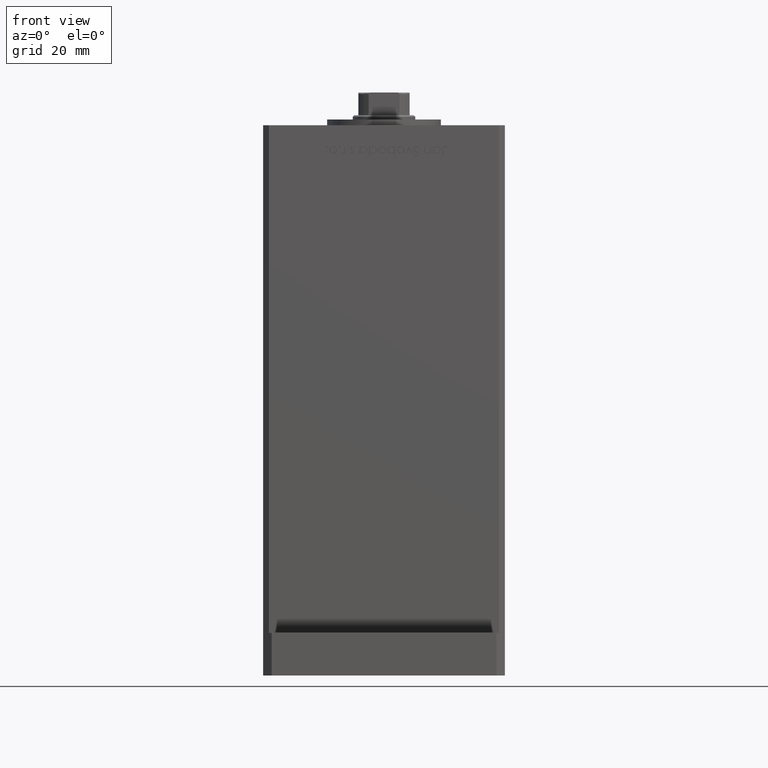
[diagram: clean part render]
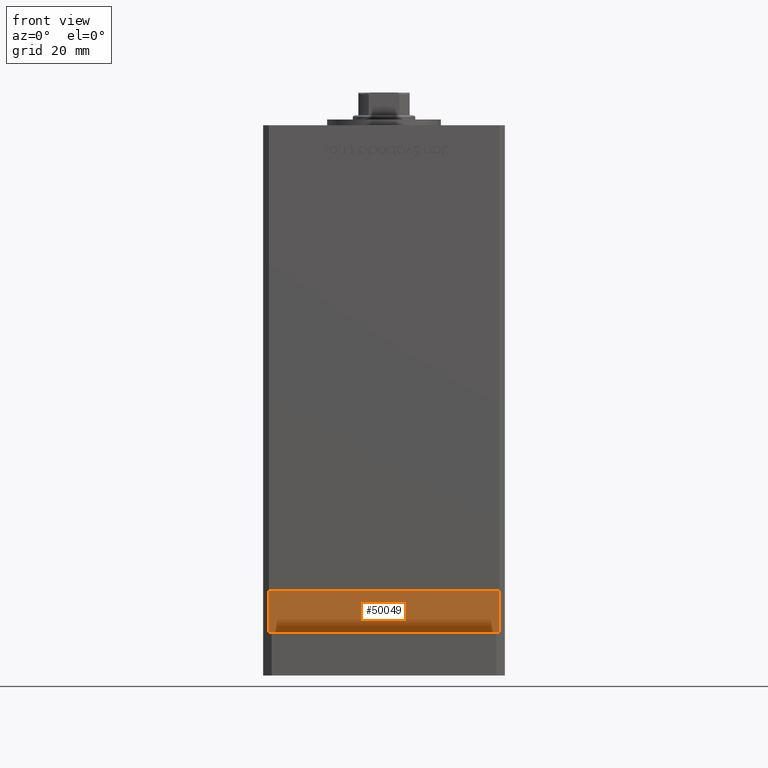
[diagram: same view with one face highlighted and labeled with its STEP entity id]
A machine part, front view. The second image highlights one B-rep face of the part: STEP entity #50049.
In plain terms, the highlighted planar face has unit normal (-0, -1, -0).
Its self-contained STEP definition (entity closure, byte-faithful):
#98 = EDGE_CURVE ( 'NONE', #44562, #36738, #8540, .T. ) ;
#1008 = PLANE ( 'NONE',  #40600 ) ;
#3506 = CARTESIAN_POINT ( 'NONE',  ( -40.49999999999999289, -37.50000000000002132, -15.00000000000000000 ) ) ;
#4775 = DIRECTION ( 'NONE',  ( 1.713307136767217096E-16, -1.000000000000000000, 0.000000000000000000 ) ) ;
#7076 = VECTOR ( 'NONE', #18748, 1000.000000000000000 ) ;
#7902 = ORIENTED_EDGE ( 'NONE', *, *, #38477, .T. ) ;
#8540 = LINE ( 'NONE', #20410, #17863 ) ;
#9346 = DIRECTION ( 'NONE',  ( 1.000000000000000000, 1.713307136767217096E-16, 0.000000000000000000 ) ) ;
#10388 = LINE ( 'NONE', #26323, #7076 ) ;
#13205 = EDGE_CURVE ( 'NONE', #21061, #36738, #10388, .T. ) ;
#16119 = VECTOR ( 'NONE', #38866, 1000.000000000000000 ) ;
#16188 = ORIENTED_EDGE ( 'NONE', *, *, #13205, .F. ) ;
#16862 = LINE ( 'NONE', #33321, #16119 ) ;
#17821 = CARTESIAN_POINT ( 'NONE',  ( -40.49999999999999289, -37.50000000000002132, -15.00000000000000000 ) ) ;
#17863 = VECTOR ( 'NONE', #25288, 1000.000000000000000 ) ;
#18748 = DIRECTION ( 'NONE',  ( 1.000000000000000000, 1.713307136767217096E-16, 0.000000000000000000 ) ) ;
#20410 = CARTESIAN_POINT ( 'NONE',  ( 40.50000000000000000, -37.50000000000000711, -15.00000000000000000 ) ) ;
#20563 = VERTEX_POINT ( 'NONE', #17821 ) ;
#20708 = EDGE_CURVE ( 'NONE', #20563, #21061, #48287, .T. ) ;
#21061 = VERTEX_POINT ( 'NONE', #36274 ) ;
#25288 = DIRECTION ( 'NONE',  ( 0.000000000000000000, 0.000000000000000000, 1.000000000000000000 ) ) ;
#26323 = CARTESIAN_POINT ( 'NONE',  ( -40.49999999999999289, -37.50000000000002132, 0.000000000000000000 ) ) ;
#29363 = ORIENTED_EDGE ( 'NONE', *, *, #98, .T. ) ;
#29717 = EDGE_LOOP ( 'NONE', ( #16188, #33405, #7902, #29363 ) ) ;
#32134 = VECTOR ( 'NONE', #44243, 1000.000000000000000 ) ;
#33321 = CARTESIAN_POINT ( 'NONE',  ( -40.49999999999999289, -37.50000000000002132, -15.00000000000000000 ) ) ;
#33382 = FACE_OUTER_BOUND ( 'NONE', #29717, .T. ) ;
#33405 = ORIENTED_EDGE ( 'NONE', *, *, #20708, .F. ) ;
#36274 = CARTESIAN_POINT ( 'NONE',  ( -40.49999999999999289, -37.50000000000002132, 0.000000000000000000 ) ) ;
#36738 = VERTEX_POINT ( 'NONE', #38113 ) ;
#38113 = CARTESIAN_POINT ( 'NONE',  ( 40.50000000000000000, -37.50000000000000711, 0.000000000000000000 ) ) ;
#38203 = CARTESIAN_POINT ( 'NONE',  ( -40.49999999999999289, -37.50000000000002132, -15.00000000000000000 ) ) ;
#38477 = EDGE_CURVE ( 'NONE', #20563, #44562, #16862, .T. ) ;
#38866 = DIRECTION ( 'NONE',  ( 1.000000000000000000, 1.713307136767217096E-16, 0.000000000000000000 ) ) ;
#39249 = CARTESIAN_POINT ( 'NONE',  ( 40.50000000000000000, -37.50000000000000711, -15.00000000000000000 ) ) ;
#40600 = AXIS2_PLACEMENT_3D ( 'NONE', #38203, #4775, #9346 ) ;
#44243 = DIRECTION ( 'NONE',  ( 0.000000000000000000, 0.000000000000000000, 1.000000000000000000 ) ) ;
#44562 = VERTEX_POINT ( 'NONE', #39249 ) ;
#48287 = LINE ( 'NONE', #3506, #32134 ) ;
#50049 = ADVANCED_FACE ( 'NONE', ( #33382 ), #1008, .T. ) ;